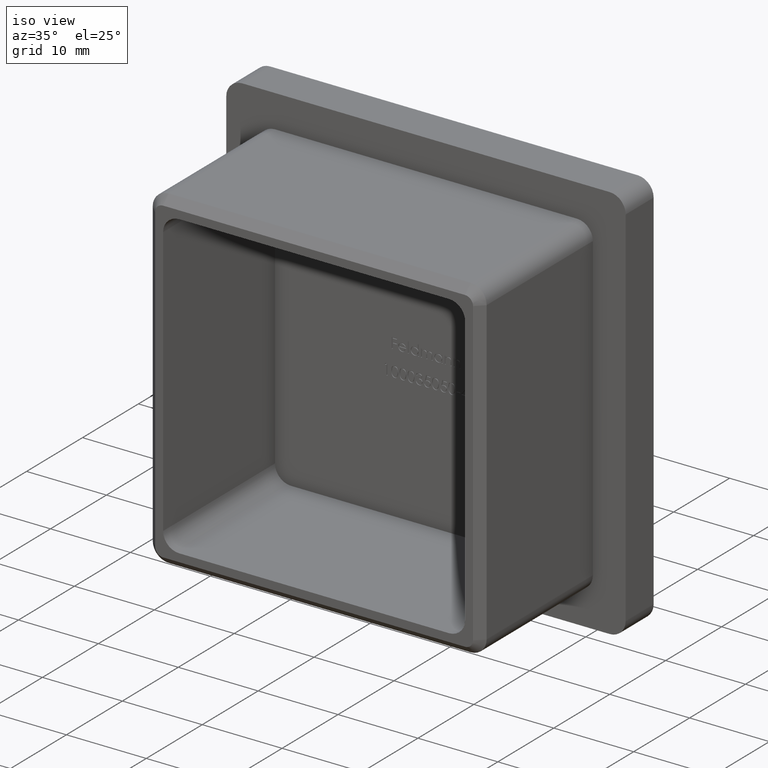
[diagram: clean part render]
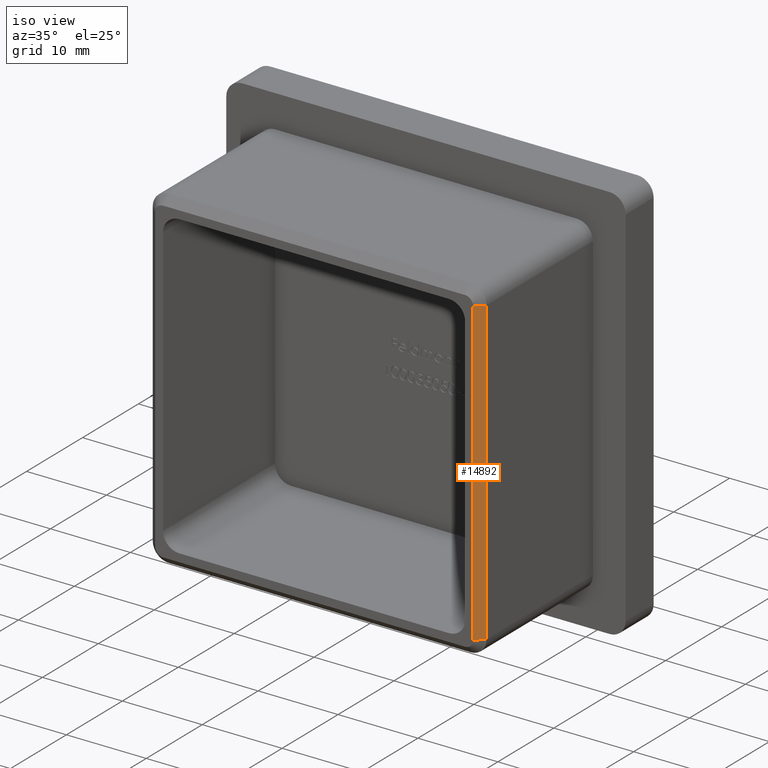
[diagram: same view with one face highlighted and labeled with its STEP entity id]
A machine part, iso view. The second image highlights one B-rep face of the part: STEP entity #14892.
In plain terms, the highlighted planar face has unit normal (0.7071, -0.7071, 0).
Its self-contained STEP definition (entity closure, byte-faithful):
#203 = CARTESIAN_POINT ( 'NONE',  ( 19.89999999999999900, -20.00000000000000000, -18.90000000000000900 ) ) ;
#266 = CARTESIAN_POINT ( 'NONE',  ( 20.90000000000000600, -18.99999999999998600, 18.90000000000000600 ) ) ;
#394 = ORIENTED_EDGE ( 'NONE', *, *, #2810, .F. ) ;
#1126 = VERTEX_POINT ( 'NONE', #10959 ) ;
#1532 = DIRECTION ( 'NONE',  ( 0.0000000000000000000, 0.0000000000000000000, -1.000000000000000000 ) ) ;
#1916 = CARTESIAN_POINT ( 'NONE',  ( 19.89999999999999900, -20.00000000000000000, 18.90000000000000600 ) ) ;
#1957 = EDGE_LOOP ( 'NONE', ( #3456, #8905, #7920, #394 ) ) ;
#2294 = CARTESIAN_POINT ( 'NONE',  ( 19.89999999999999900, -20.00000000000000000, -18.90000000000000900 ) ) ;
#2401 = EDGE_CURVE ( 'NONE', #11728, #10359, #16001, .T. ) ;
#2810 = EDGE_CURVE ( 'NONE', #10629, #10359, #14991, .T. ) ;
#2830 = CARTESIAN_POINT ( 'NONE',  ( 20.90000000000000600, -18.99999999999998600, -18.90000000000000900 ) ) ;
#3456 = ORIENTED_EDGE ( 'NONE', *, *, #8563, .T. ) ;
#6299 = PLANE ( 'NONE',  #10129 ) ;
#6729 = DIRECTION ( 'NONE',  ( 0.7071067811865500200, -0.7071067811865451300, 0.0000000000000000000 ) ) ;
#7399 = VECTOR ( 'NONE', #10927, 1000.000000000000100 ) ;
#7920 = ORIENTED_EDGE ( 'NONE', *, *, #2401, .T. ) ;
#8131 = EDGE_CURVE ( 'NONE', #11728, #1126, #13165, .T. ) ;
#8563 = EDGE_CURVE ( 'NONE', #10629, #1126, #13725, .T. ) ;
#8905 = ORIENTED_EDGE ( 'NONE', *, *, #8131, .F. ) ;
#9781 = CARTESIAN_POINT ( 'NONE',  ( 19.89999999999999900, -20.00000000000000000, 0.0000000000000000000 ) ) ;
#9832 = FACE_OUTER_BOUND ( 'NONE', #1957, .T. ) ;
#9934 = VECTOR ( 'NONE', #1532, 1000.000000000000000 ) ;
#10129 = AXIS2_PLACEMENT_3D ( 'NONE', #9781, #6729, #14155 ) ;
#10359 = VERTEX_POINT ( 'NONE', #12544 ) ;
#10384 = VECTOR ( 'NONE', #14110, 1000.000000000000100 ) ;
#10629 = VERTEX_POINT ( 'NONE', #203 ) ;
#10927 = DIRECTION ( 'NONE',  ( 0.7071067811865451300, 0.7071067811865500200, 0.0000000000000000000 ) ) ;
#10959 = CARTESIAN_POINT ( 'NONE',  ( 20.90000000000000600, -18.99999999999998600, -18.90000000000000900 ) ) ;
#11637 = CARTESIAN_POINT ( 'NONE',  ( 20.90000000000000900, -18.99999999999998600, 18.90000000000000600 ) ) ;
#11728 = VERTEX_POINT ( 'NONE', #266 ) ;
#12544 = CARTESIAN_POINT ( 'NONE',  ( 19.90000000000000200, -20.00000000000000000, 18.90000000000000600 ) ) ;
#12950 = DIRECTION ( 'NONE',  ( 0.0000000000000000000, 0.0000000000000000000, 1.000000000000000000 ) ) ;
#13165 = LINE ( 'NONE', #2830, #9934 ) ;
#13232 = VECTOR ( 'NONE', #12950, 1000.000000000000000 ) ;
#13725 = LINE ( 'NONE', #2294, #7399 ) ;
#14110 = DIRECTION ( 'NONE',  ( -0.7071067811865451300, -0.7071067811865500200, 0.0000000000000000000 ) ) ;
#14155 = DIRECTION ( 'NONE',  ( 0.0000000000000000000, 0.0000000000000000000, -1.000000000000000000 ) ) ;
#14892 = ADVANCED_FACE ( 'NONE', ( #9832 ), #6299, .T. ) ;
#14991 = LINE ( 'NONE', #1916, #13232 ) ;
#16001 = LINE ( 'NONE', #11637, #10384 ) ;